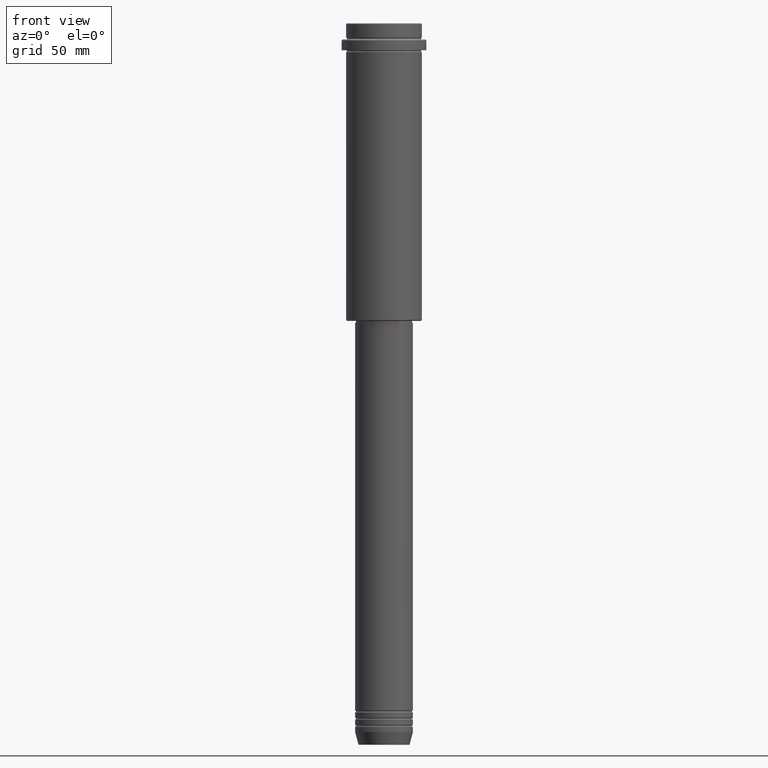
[diagram: clean part render]
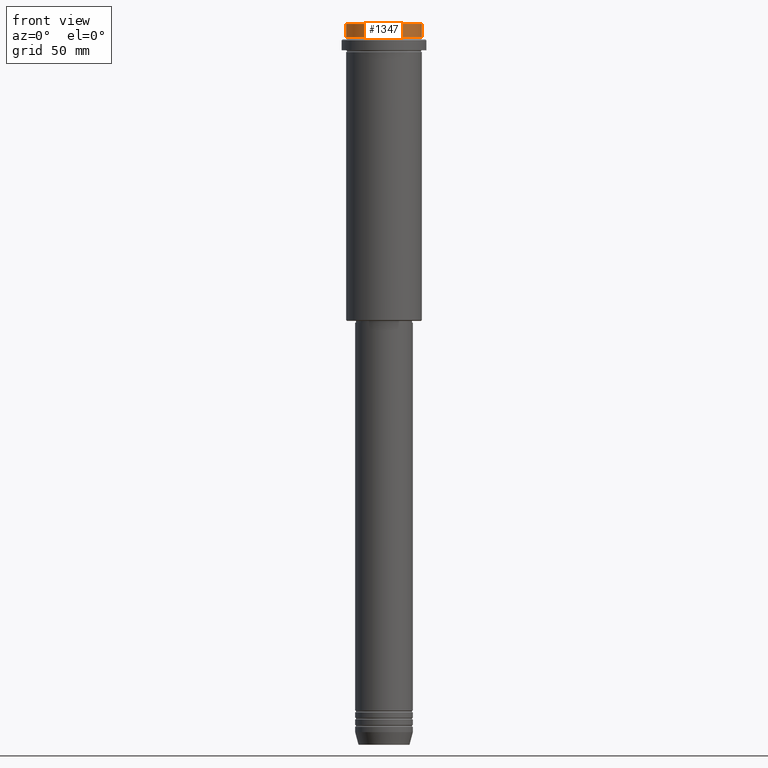
[diagram: same view with one face highlighted and labeled with its STEP entity id]
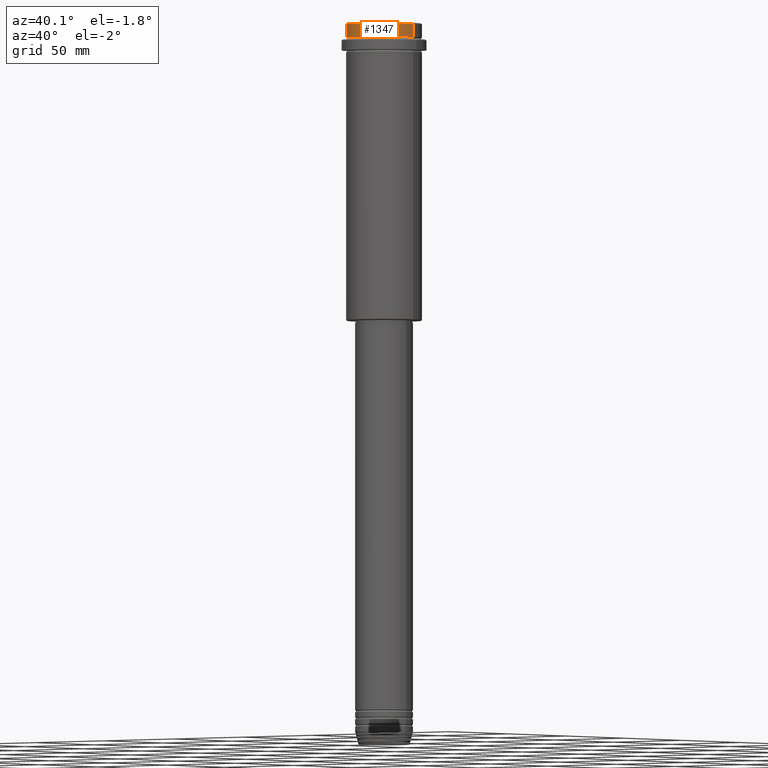
[diagram: same view with one face highlighted and labeled with its STEP entity id]
A machine part, front view. The second image highlights one B-rep face of the part: STEP entity #1347.
A second angle (auxiliary view) of the same face is appended — the face is thin or edge-on in the first view.
In plain terms, the highlighted cylindrical surface (partial cylindrical patch) has radius 21 mm, axis along (-0, -0, 1).
Its self-contained STEP definition (entity closure, byte-faithful):
#13 = AXIS2_PLACEMENT_3D ( 'NONE', #1209, #220, #1303 ) ;
#51 = CARTESIAN_POINT ( 'NONE',  ( 0.000000000000000000, 0.000000000000000000, 0.000000000000000000 ) ) ;
#71 = LINE ( 'NONE', #756, #166 ) ;
#112 = VERTEX_POINT ( 'NONE', #604 ) ;
#166 = VECTOR ( 'NONE', #650, 1000.000000000000000 ) ;
#190 = AXIS2_PLACEMENT_3D ( 'NONE', #51, #1360, #818 ) ;
#199 = DIRECTION ( 'NONE',  ( -0.000000000000000000, -0.000000000000000000, 1.000000000000000000 ) ) ;
#220 = DIRECTION ( 'NONE',  ( 0.000000000000000000, 0.000000000000000000, -1.000000000000000000 ) ) ;
#221 = ORIENTED_EDGE ( 'NONE', *, *, #708, .F. ) ;
#229 = VERTEX_POINT ( 'NONE', #1393 ) ;
#270 = EDGE_CURVE ( 'NONE', #436, #112, #614, .T. ) ;
#274 = CYLINDRICAL_SURFACE ( 'NONE', #190, 20.99999999999999645 ) ;
#311 = LINE ( 'NONE', #749, #1383 ) ;
#381 = FACE_OUTER_BOUND ( 'NONE', #435, .T. ) ;
#415 = DIRECTION ( 'NONE',  ( 1.000000000000000000, 0.000000000000000000, 0.000000000000000000 ) ) ;
#435 = EDGE_LOOP ( 'NONE', ( #221, #1211, #1348, #493 ) ) ;
#436 = VERTEX_POINT ( 'NONE', #686 ) ;
#493 = ORIENTED_EDGE ( 'NONE', *, *, #270, .T. ) ;
#505 = CARTESIAN_POINT ( 'NONE',  ( 0.000000000000000000, 0.000000000000000000, -7.999999999999998224 ) ) ;
#604 = CARTESIAN_POINT ( 'NONE',  ( -20.99999999999999645, 2.571758278209441267E-15, -0.4999999999999241163 ) ) ;
#614 = CIRCLE ( 'NONE', #13, 20.99999999999999645 ) ;
#650 = DIRECTION ( 'NONE',  ( -0.000000000000000000, -0.000000000000000000, 1.000000000000000000 ) ) ;
#668 = EDGE_CURVE ( 'NONE', #754, #229, #1337, .T. ) ;
#686 = CARTESIAN_POINT ( 'NONE',  ( 20.99999999999999645, 0.000000000000000000, -0.4999999999999241163 ) ) ;
#708 = EDGE_CURVE ( 'NONE', #754, #112, #311, .T. ) ;
#715 = EDGE_CURVE ( 'NONE', #229, #436, #71, .T. ) ;
#749 = CARTESIAN_POINT ( 'NONE',  ( -20.99999999999999645, 2.571758278209441267E-15, 0.000000000000000000 ) ) ;
#754 = VERTEX_POINT ( 'NONE', #1103 ) ;
#756 = CARTESIAN_POINT ( 'NONE',  ( 20.99999999999999645, 0.000000000000000000, 0.000000000000000000 ) ) ;
#818 = DIRECTION ( 'NONE',  ( 1.000000000000000000, 0.000000000000000000, 0.000000000000000000 ) ) ;
#875 = AXIS2_PLACEMENT_3D ( 'NONE', #505, #1184, #415 ) ;
#1103 = CARTESIAN_POINT ( 'NONE',  ( -20.99999999999999645, 2.571758278209441267E-15, -7.999999999999998224 ) ) ;
#1184 = DIRECTION ( 'NONE',  ( -0.000000000000000000, -0.000000000000000000, 1.000000000000000000 ) ) ;
#1209 = CARTESIAN_POINT ( 'NONE',  ( 0.000000000000000000, 0.000000000000000000, -0.4999999999999241163 ) ) ;
#1211 = ORIENTED_EDGE ( 'NONE', *, *, #668, .T. ) ;
#1303 = DIRECTION ( 'NONE',  ( 1.000000000000000000, 0.000000000000000000, 0.000000000000000000 ) ) ;
#1337 = CIRCLE ( 'NONE', #875, 20.99999999999999645 ) ;
#1347 = ADVANCED_FACE ( 'NONE', ( #381 ), #274, .T. ) ;
#1348 = ORIENTED_EDGE ( 'NONE', *, *, #715, .T. ) ;
#1360 = DIRECTION ( 'NONE',  ( -0.000000000000000000, -0.000000000000000000, 1.000000000000000000 ) ) ;
#1383 = VECTOR ( 'NONE', #199, 1000.000000000000000 ) ;
#1393 = CARTESIAN_POINT ( 'NONE',  ( 20.99999999999999645, 0.000000000000000000, -7.999999999999998224 ) ) ;